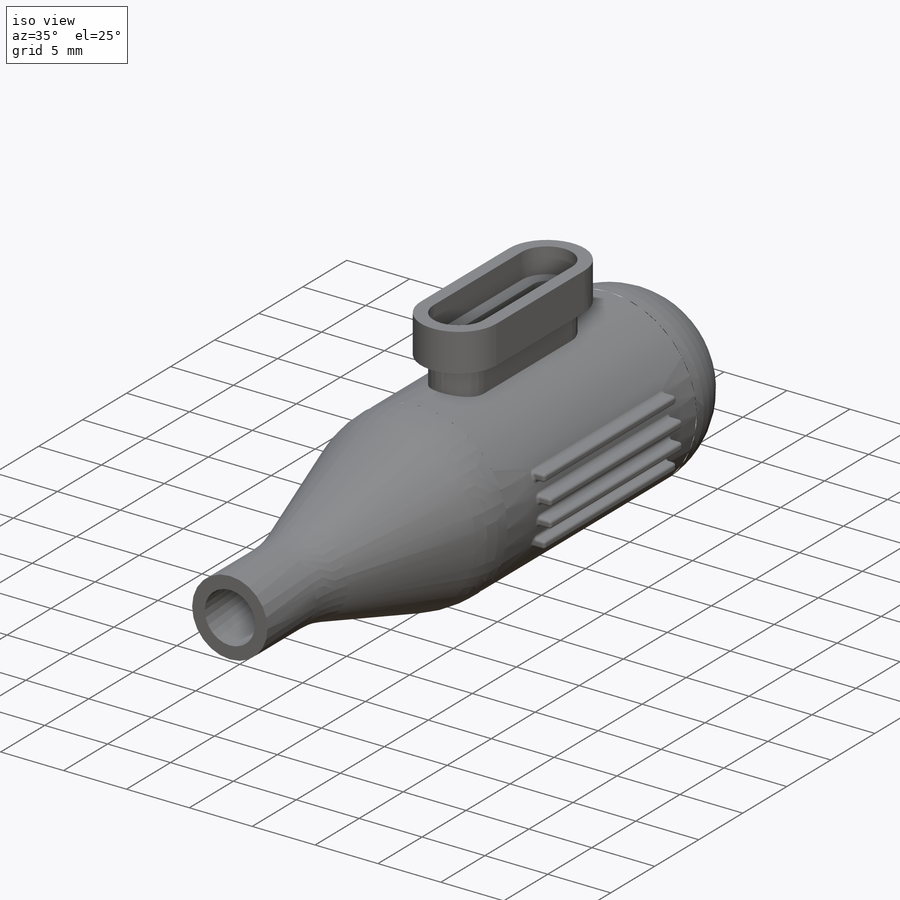
[diagram: iso view]
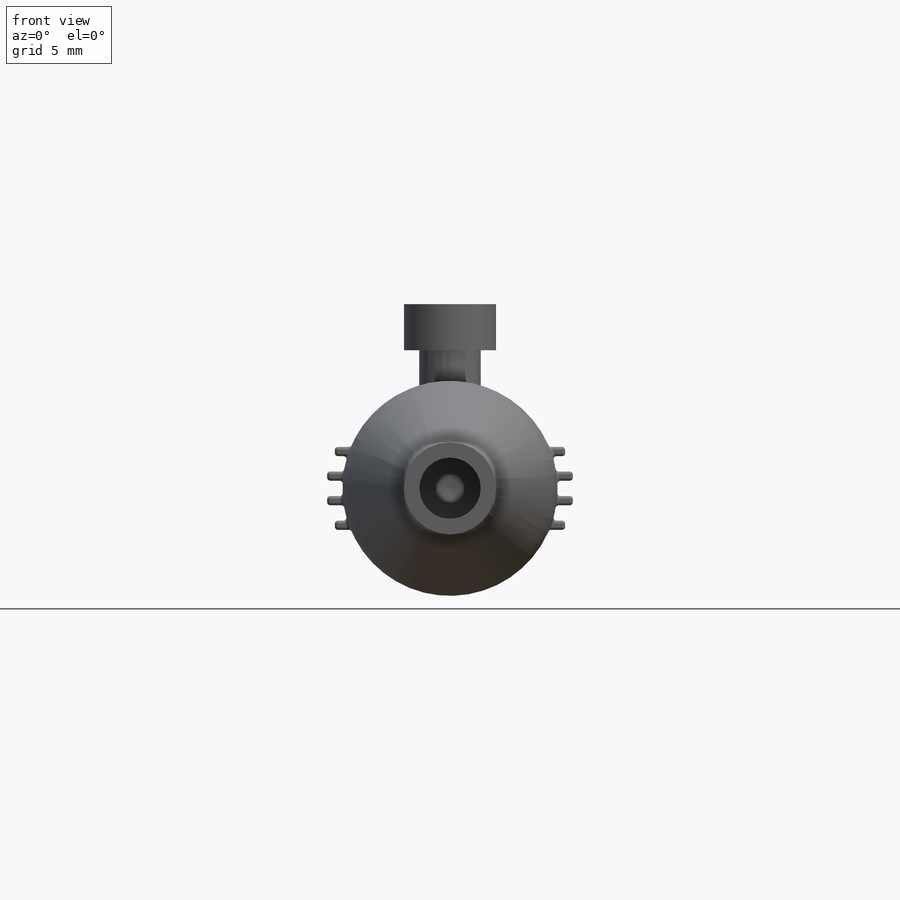
[diagram: front view]
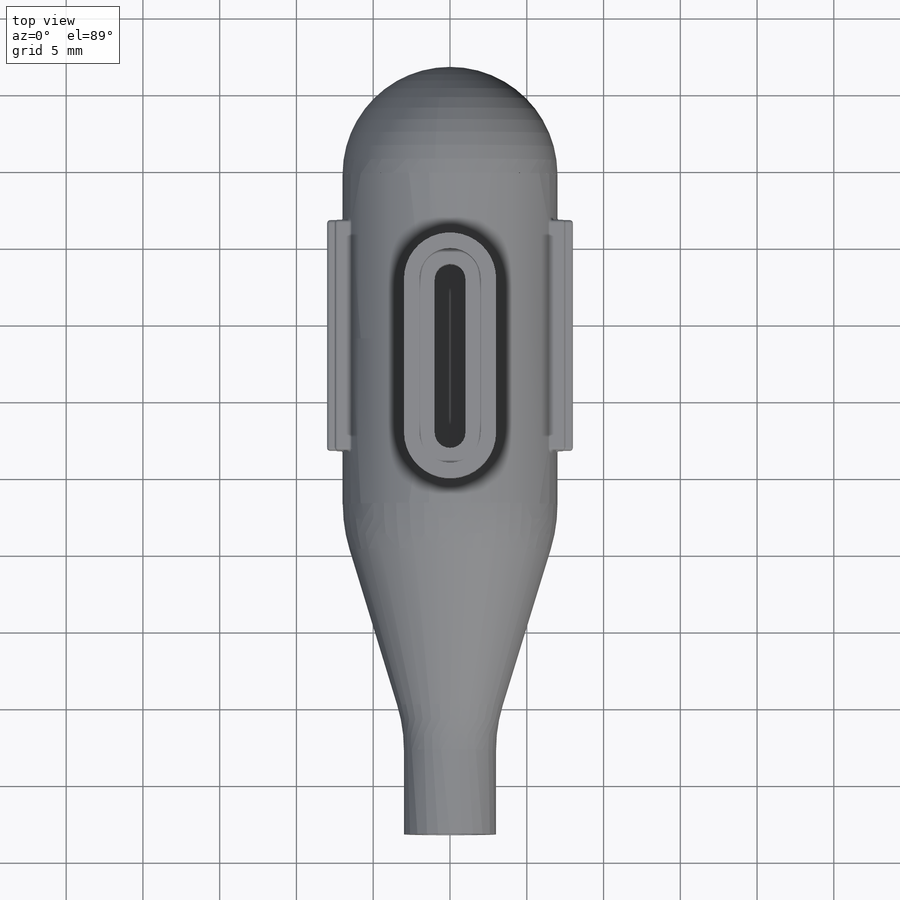
[diagram: top view]
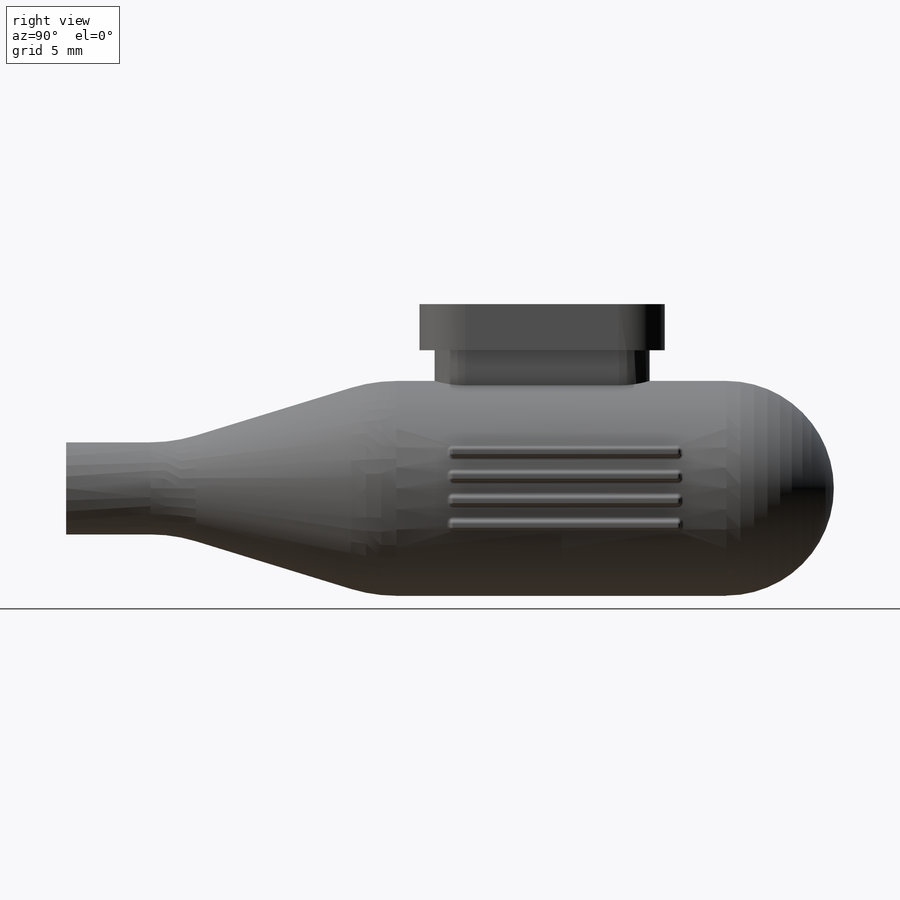
[diagram: right view]
SOLIDWORKS PART (.sldprt)
format: sldprt  version: not decoded by parser v0  size: 883,712 bytes
history: native  units: mm
features: fillet x10, sketch x7, extrude x5, plane x2, shell x2, material x1, revolve x1, cut_extrude x1, mirror x1 (+12 scaffold rows collapsed)
feature tree (42):
  scaffold x12  (default folders/planes/origin — collapsed)
  material  "Material <not specified>"
  sketch  "Sketch1"  dims[D6=10.0mm D1=7.0mm D2=20.0mm D3=50.0mm D4=6.0mm D5=14.0mm]
  revolve  "Revolve1"  Angle=360deg
  plane  "Plane1"  Offset=12mm
  sketch  "Sketch3"  dims[D1=3.0mm D2=10.0mm D3=26.0mm D4=1.0mm]
  extrude  "Boss-Extrude2"  Depth=3mm
  extrude  "Boss-Extrude3"  [1 undecoded]
  sketch  "Sketch3<7>"  dims[D1=9.0mm]
  shell  "Shell4"  Thickness=1mm
  shell  "Shell6"  Thickness=1mm
  sketch  "Sketch6"  dims[D1=0.0mm D2=1.0mm]
  cut_extrude  "Cut-Extrude1"  Depth=9mm
  plane  "Plane2"  Offset=8mm
  sketch  "Sketch7"  dims[D1=25.0mm D2=15.0mm D3=0.6mm D4=0.5mm D5=1.0mm]
  extrude  "Boss-Extrude4"  [1 undecoded]
  extrude  "Boss-Extrude5"  [1 undecoded]
  sketch  "Sketch7<4>"
  extrude  "Boss-Extrude6"  [1 undecoded]
  sketch  "Sketch7<5>"  dims[D19=0.5mm]
  mirror  "Mirror2"
  fillet  "Fillet1"  Radius=0.2mm
  fillet  "Fillet2"  Radius=0.2mm
  fillet  "Fillet3"  Radius=0.2mm
  fillet  "Fillet4"  Radius=0.2mm
  fillet  "Fillet5"  Radius=0.2mm
  fillet  "Fillet9"  Radius=0.2mm
  fillet  "Fillet10"  Radius=0.2mm
  fillet  "Fillet11"  Radius=0.2mm
  fillet  "Fillet12"  Radius=0.2mm
  fillet  "Fillet13"  Radius=0.2mm
decode coverage: 21 of 27 modeling features carry decoded parameters
note: 4 parameter values undecoded
summary: no parameter record found for 4 features
note: suppression state not decoded; provenance and decode notes live in map.json
